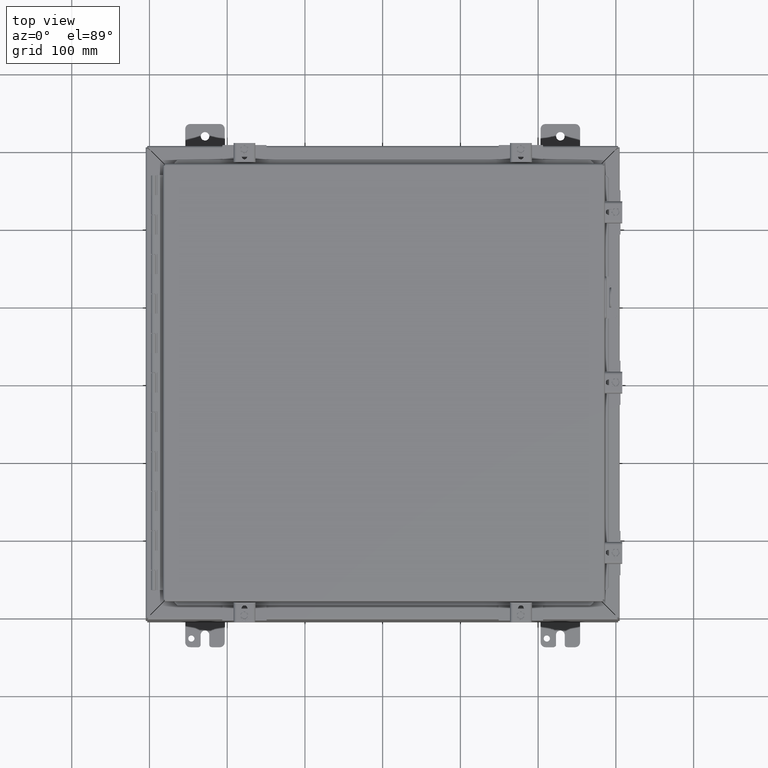
[diagram: clean part render]
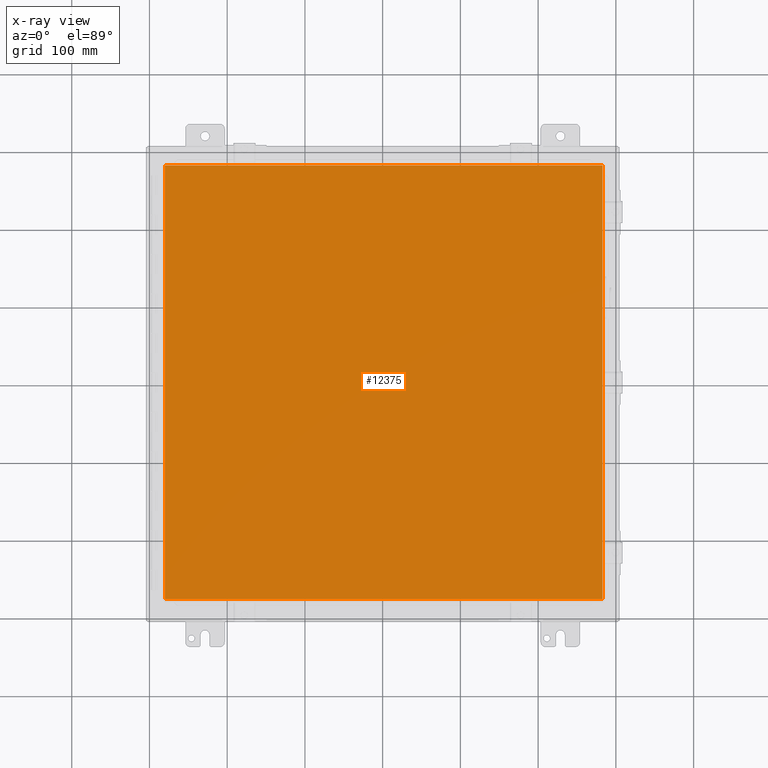
[diagram: x-ray — body ghosted, one internal face saturated and labeled with its STEP entity id]
A machine part, top view, then the same camera in x-ray: the body is ghosted and one INTERNAL B-rep face — a face not visible from any outside direction — is saturated and labeled: STEP entity #12375.
In plain terms, the highlighted planar face has unit normal (0, -0, -1).
Its self-contained STEP definition (entity closure, byte-faithful):
#1291=PLANE('',#13131);
#1982=LINE('',#20622,#3099);
#1988=LINE('',#20752,#3105);
#1992=LINE('',#20849,#3109);
#2006=LINE('',#21083,#3123);
#3099=VECTOR('',#15031,22.1645);
#3105=VECTOR('',#15041,21.977);
#3109=VECTOR('',#15053,22.1645);
#3123=VECTOR('',#15089,21.977);
#4121=FACE_OUTER_BOUND('',#4831,.T.);
#4831=EDGE_LOOP('',(#10021,#10022,#10023,#10024));
#6029=VERTEX_POINT('',#20606);
#6030=VERTEX_POINT('',#20614);
#6036=VERTEX_POINT('',#20751);
#6040=VERTEX_POINT('',#20848);
#7444=EDGE_CURVE('',#6029,#6030,#1982,.T.);
#7458=EDGE_CURVE('',#6036,#6029,#1988,.T.);
#7469=EDGE_CURVE('',#6040,#6036,#1992,.T.);
#7492=EDGE_CURVE('',#6030,#6040,#2006,.T.);
#10021=ORIENTED_EDGE('',*,*,#7458,.T.);
#10022=ORIENTED_EDGE('',*,*,#7444,.T.);
#10023=ORIENTED_EDGE('',*,*,#7492,.T.);
#10024=ORIENTED_EDGE('',*,*,#7469,.T.);
#12375=ADVANCED_FACE('',(#4121),#1291,.T.);
#13131=AXIS2_PLACEMENT_3D('',#21106,#15093,#15094);
#15031=DIRECTION('',(1.,1.25614896687758E-16,0.));
#15041=DIRECTION('',(1.27288180621204E-16,-1.,0.));
#15053=DIRECTION('',(-1.,0.,0.));
#15089=DIRECTION('',(0.,1.,0.));
#15093=DIRECTION('center_axis',(0.,0.,1.));
#15094=DIRECTION('ref_axis',(1.,0.,0.));
#20606=CARTESIAN_POINT('',(-11.08225,-10.9885,0.074));
#20614=CARTESIAN_POINT('',(11.08225,-10.9885,0.074));
#20622=CARTESIAN_POINT('',(5.541125,-10.9885,0.074));
#20751=CARTESIAN_POINT('',(-11.08225,10.9885,0.074));
#20752=CARTESIAN_POINT('',(-11.08225,-5.49425,0.074));
#20848=CARTESIAN_POINT('',(11.08225,10.9885,0.074));
#20849=CARTESIAN_POINT('',(-5.59375,10.9885,0.074));
#21083=CARTESIAN_POINT('',(11.08225,5.49425,0.074));
#21106=CARTESIAN_POINT('Origin',(-3.49676543189026E-16,1.36557985991797E-15,
0.074));